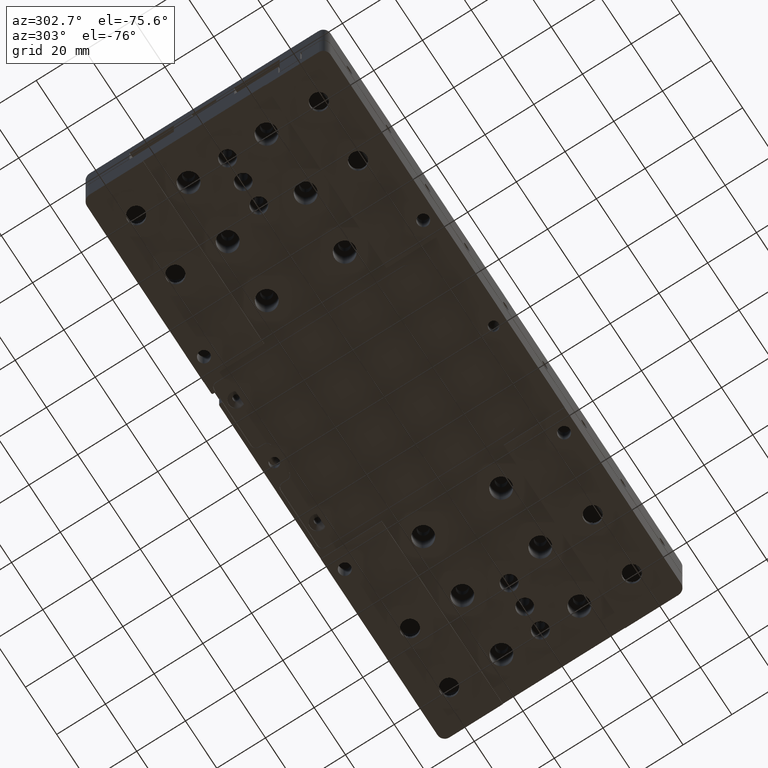
[diagram: clean part render]
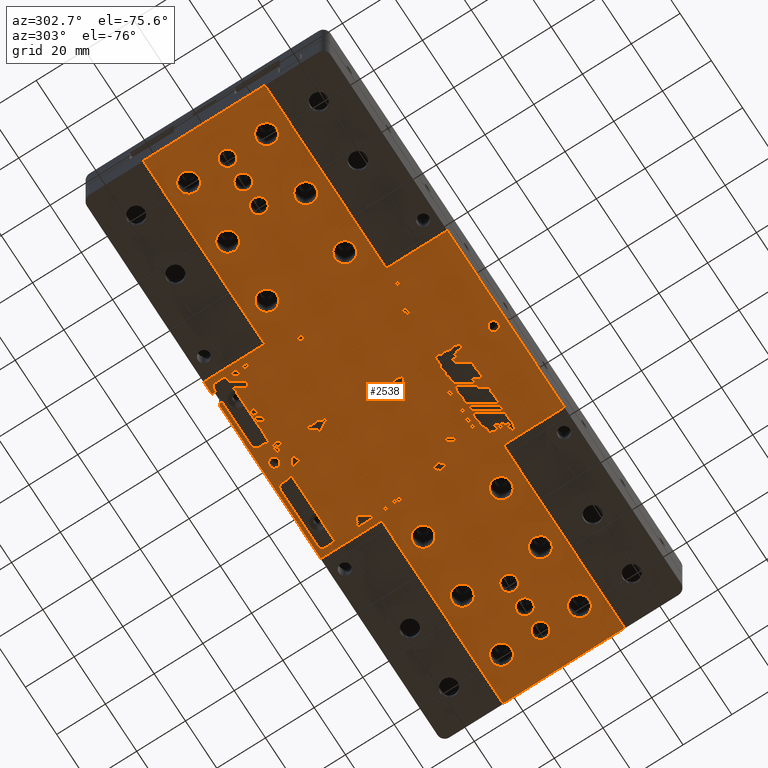
[diagram: same view with one face highlighted and labeled with its STEP entity id]
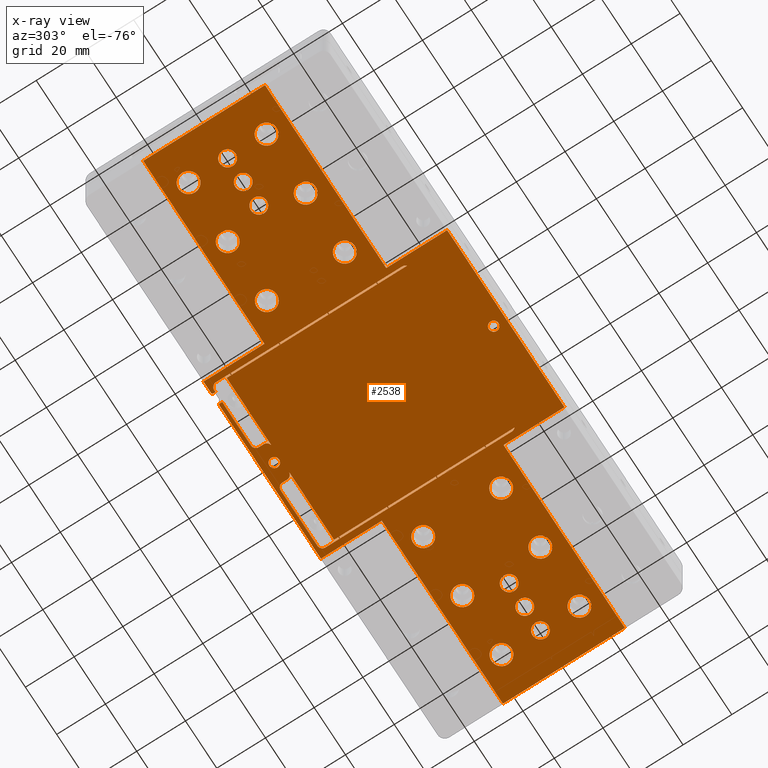
[diagram: x-ray of the same camera — body ghosted, the highlighted face saturated]
A machine part, auxiliary view. The second image highlights one B-rep face of the part: STEP entity #2538.
The next image is the same camera in x-ray: the body ghosted, the highlighted face saturated — about 0% of this face is hidden behind the body in this view.
In plain terms, the highlighted planar face has unit normal (0, 0, -1).
Its self-contained STEP definition (entity closure, byte-faithful):
#4 = VECTOR ( 'NONE', #17447, 1000.000000000000000 ) ;
#19 = CARTESIAN_POINT ( 'NONE',  ( -2.000000000000000000, 45.00000000000000000, -14.00000000000000000 ) ) ;
#97 = LINE ( 'NONE', #10640, #25484 ) ;
#121 = CIRCLE ( 'NONE', #20148, 2.000000000000001776 ) ;
#138 = CARTESIAN_POINT ( 'NONE',  ( -37.50000000000000000, 50.00000000000000711, -14.00000000000000000 ) ) ;
#163 = ORIENTED_EDGE ( 'NONE', *, *, #1460, .T. ) ;
#181 = CARTESIAN_POINT ( 'NONE',  ( -90.00000000000000000, 0.000000000000000000, -14.00000000000000000 ) ) ;
#197 = CARTESIAN_POINT ( 'NONE',  ( 96.75000000000000000, 0.000000000000000000, -14.00000000000000000 ) ) ;
#228 = EDGE_CURVE ( 'NONE', #459, #19366, #18252, .T. ) ;
#308 = ORIENTED_EDGE ( 'NONE', *, *, #10929, .T. ) ;
#316 = CARTESIAN_POINT ( 'NONE',  ( -35.00000000000000000, -30.00000000000000000, -13.99999999999999822 ) ) ;
#446 = VERTEX_POINT ( 'NONE', #11557 ) ;
#459 = VERTEX_POINT ( 'NONE', #27904 ) ;
#565 = ORIENTED_EDGE ( 'NONE', *, *, #19537, .T. ) ;
#623 = VECTOR ( 'NONE', #12119, 1000.000000000000000 ) ;
#636 = FACE_BOUND ( 'NONE', #24314, .T. ) ;
#652 = EDGE_CURVE ( 'NONE', #3553, #3553, #16965, .T. ) ;
#665 = VECTOR ( 'NONE', #9392, 1000.000000000000000 ) ;
#696 = EDGE_CURVE ( 'NONE', #2400, #23042, #12358, .T. ) ;
#704 = CARTESIAN_POINT ( 'NONE',  ( 34.29999999999999716, 42.54999999999999716, -14.00000000000000000 ) ) ;
#705 = CARTESIAN_POINT ( 'NONE',  ( 0.000000000000000000, -25.00000000000000000, -14.00000000000000000 ) ) ;
#786 = CARTESIAN_POINT ( 'NONE',  ( 7.500000000000000000, 44.54999999999999716, -14.00000000000000000 ) ) ;
#924 = DIRECTION ( 'NONE',  ( 1.000000000000000000, 0.000000000000000000, 0.000000000000000000 ) ) ;
#950 = VERTEX_POINT ( 'NONE', #5669 ) ;
#965 = LINE ( 'NONE', #705, #665 ) ;
#1033 = EDGE_LOOP ( 'NONE', ( #17482 ) ) ;
#1131 = EDGE_CURVE ( 'NONE', #20933, #20933, #23391, .T. ) ;
#1155 = LINE ( 'NONE', #3297, #11110 ) ;
#1165 = EDGE_CURVE ( 'NONE', #10092, #10092, #12913, .T. ) ;
#1223 = DIRECTION ( 'NONE',  ( -0.000000000000000000, -0.000000000000000000, 1.000000000000000000 ) ) ;
#1279 = AXIS2_PLACEMENT_3D ( 'NONE', #22738, #20605, #3374 ) ;
#1291 = AXIS2_PLACEMENT_3D ( 'NONE', #19457, #14759, #17333 ) ;
#1293 = EDGE_CURVE ( 'NONE', #27170, #27170, #21564, .T. ) ;
#1294 = EDGE_CURVE ( 'NONE', #13691, #26808, #18256, .T. ) ;
#1397 = DIRECTION ( 'NONE',  ( -0.000000000000000000, -0.000000000000000000, 1.000000000000000000 ) ) ;
#1460 = EDGE_CURVE ( 'NONE', #15662, #6875, #14818, .T. ) ;
#1501 = EDGE_CURVE ( 'NONE', #3064, #3792, #11247, .T. ) ;
#1604 = LINE ( 'NONE', #7735, #26492 ) ;
#1751 = EDGE_CURVE ( 'NONE', #26808, #6557, #965, .T. ) ;
#1764 = CARTESIAN_POINT ( 'NONE',  ( -54.12500000000000711, -16.00000000000000000, -14.00000000000000000 ) ) ;
#1898 = ORIENTED_EDGE ( 'NONE', *, *, #5238, .T. ) ;
#1972 = ORIENTED_EDGE ( 'NONE', *, *, #2041, .T. ) ;
#1973 = EDGE_CURVE ( 'NONE', #2963, #15662, #5692, .T. ) ;
#2041 = EDGE_CURVE ( 'NONE', #3211, #22769, #23900, .T. ) ;
#2145 = ORIENTED_EDGE ( 'NONE', *, *, #19735, .T. ) ;
#2283 = CIRCLE ( 'NONE', #18194, 2.000000000000000000 ) ;
#2368 = ORIENTED_EDGE ( 'NONE', *, *, #2672, .T. ) ;
#2400 = VERTEX_POINT ( 'NONE', #17174 ) ;
#2474 = ORIENTED_EDGE ( 'NONE', *, *, #2940, .T. ) ;
#2525 = VECTOR ( 'NONE', #12776, 1000.000000000000000 ) ;
#2538 = ADVANCED_FACE ( 'NONE', ( #20159, #636, #4789, #17751, #7341, #20021, #26422, #6923, #15603, #16013, #26691, #7203, #24296, #15876, #5065, #13739, #2929, #22570, #9872, #19001, #3619, #7611 ), #16291, .T. ) ;
#2634 = DIRECTION ( 'NONE',  ( -1.000000000000000000, 0.000000000000000000, 0.000000000000000000 ) ) ;
#2672 = EDGE_CURVE ( 'NONE', #8387, #8387, #3444, .T. ) ;
#2722 = VERTEX_POINT ( 'NONE', #19710 ) ;
#2780 = CARTESIAN_POINT ( 'NONE',  ( 115.0000000000000000, -25.00000000000000355, -14.00000000000000000 ) ) ;
#2899 = DIRECTION ( 'NONE',  ( -0.000000000000000000, -0.000000000000000000, 1.000000000000000000 ) ) ;
#2924 = ORIENTED_EDGE ( 'NONE', *, *, #26705, .T. ) ;
#2929 = FACE_BOUND ( 'NONE', #26838, .T. ) ;
#2940 = EDGE_CURVE ( 'NONE', #12792, #12792, #14370, .T. ) ;
#2963 = VERTEX_POINT ( 'NONE', #8374 ) ;
#2968 = AXIS2_PLACEMENT_3D ( 'NONE', #17143, #27806, #23833 ) ;
#2998 = ORIENTED_EDGE ( 'NONE', *, *, #1131, .T. ) ;
#3016 = CARTESIAN_POINT ( 'NONE',  ( -27.39999999999999858, 50.00000000000000000, -13.99999999999999822 ) ) ;
#3064 = VERTEX_POINT ( 'NONE', #23328 ) ;
#3127 = AXIS2_PLACEMENT_3D ( 'NONE', #14137, #18276, #11871 ) ;
#3179 = DIRECTION ( 'NONE',  ( 1.000000000000000000, -0.000000000000000000, 0.000000000000000000 ) ) ;
#3211 = VERTEX_POINT ( 'NONE', #6394 ) ;
#3297 = CARTESIAN_POINT ( 'NONE',  ( 0.000000000000000000, -25.00000000000000000, -14.00000000000000000 ) ) ;
#3328 = EDGE_LOOP ( 'NONE', ( #18190 ) ) ;
#3333 = DIRECTION ( 'NONE',  ( 0.000000000000000000, 0.000000000000000000, -1.000000000000000000 ) ) ;
#3374 = DIRECTION ( 'NONE',  ( -1.000000000000000000, 0.000000000000000000, 0.000000000000000000 ) ) ;
#3396 = VERTEX_POINT ( 'NONE', #14476 ) ;
#3405 = AXIS2_PLACEMENT_3D ( 'NONE', #13283, #15845, #11292 ) ;
#3444 = CIRCLE ( 'NONE', #20734, 4.125000000000003553 ) ;
#3458 = DIRECTION ( 'NONE',  ( -1.000000000000000000, 0.000000000000000000, -0.000000000000000000 ) ) ;
#3492 = EDGE_CURVE ( 'NONE', #14795, #14795, #5753, .T. ) ;
#3553 = VERTEX_POINT ( 'NONE', #18505 ) ;
#3556 = CARTESIAN_POINT ( 'NONE',  ( -37.50000000000000000, 25.00000000000000355, -14.00000000000000000 ) ) ;
#3592 = DIRECTION ( 'NONE',  ( -0.000000000000000000, -1.000000000000000000, -0.000000000000000000 ) ) ;
#3619 = FACE_BOUND ( 'NONE', #26111, .T. ) ;
#3670 = CARTESIAN_POINT ( 'NONE',  ( -5.500000000000000000, 42.54999999999999716, -14.00000000000000000 ) ) ;
#3784 = DIRECTION ( 'NONE',  ( -0.000000000000000000, -0.000000000000000000, 1.000000000000000000 ) ) ;
#3792 = VERTEX_POINT ( 'NONE', #4592 ) ;
#3840 = CARTESIAN_POINT ( 'NONE',  ( 45.87500000000000000, 16.00000000000000000, -14.00000000000000000 ) ) ;
#3878 = CARTESIAN_POINT ( 'NONE',  ( -9.500000000000000000, 46.50000000000000000, -14.00000000000000000 ) ) ;
#3966 = EDGE_LOOP ( 'NONE', ( #2474 ) ) ;
#4056 = CIRCLE ( 'NONE', #5417, 0.5000000000000004441 ) ;
#4190 = DIRECTION ( 'NONE',  ( 1.000000000000000000, -0.000000000000000000, 0.000000000000000000 ) ) ;
#4269 = EDGE_CURVE ( 'NONE', #21801, #15202, #26613, .T. ) ;
#4290 = AXIS2_PLACEMENT_3D ( 'NONE', #5302, #20396, #7171 ) ;
#4293 = CARTESIAN_POINT ( 'NONE',  ( 35.00000000000000000, 46.50000000000000000, -14.00000000000000000 ) ) ;
#4380 = CARTESIAN_POINT ( 'NONE',  ( -9.500000000000001776, 48.50000000000000000, -14.00000000000000000 ) ) ;
#4487 = CIRCLE ( 'NONE', #1291, 0.5000000000000004441 ) ;
#4495 = VECTOR ( 'NONE', #4930, 1000.000000000000000 ) ;
#4507 = CARTESIAN_POINT ( 'NONE',  ( 90.00000000000000000, 0.000000000000000000, -14.00000000000000000 ) ) ;
#4548 = EDGE_LOOP ( 'NONE', ( #8977 ) ) ;
#4592 = CARTESIAN_POINT ( 'NONE',  ( -34.29999999999999716, 42.54999999999999716, -14.00000000000000000 ) ) ;
#4735 = CARTESIAN_POINT ( 'NONE',  ( -32.10000000000000142, 48.50000000000000711, -14.00000000000000000 ) ) ;
#4760 = ORIENTED_EDGE ( 'NONE', *, *, #22012, .T. ) ;
#4789 = FACE_BOUND ( 'NONE', #1033, .T. ) ;
#4866 = ORIENTED_EDGE ( 'NONE', *, *, #7080, .T. ) ;
#4902 = VERTEX_POINT ( 'NONE', #786 ) ;
#4930 = DIRECTION ( 'NONE',  ( 0.000000000000000000, 1.000000000000000000, 0.000000000000000000 ) ) ;
#5046 = LINE ( 'NONE', #7186, #5094 ) ;
#5065 = FACE_BOUND ( 'NONE', #9568, .T. ) ;
#5094 = VECTOR ( 'NONE', #3179, 1000.000000000000000 ) ;
#5102 = VERTEX_POINT ( 'NONE', #13127 ) ;
#5144 = VERTEX_POINT ( 'NONE', #9540 ) ;
#5152 = CARTESIAN_POINT ( 'NONE',  ( 5.500000000000000000, 44.54999999999999716, -14.00000000000000000 ) ) ;
#5167 = VECTOR ( 'NONE', #20670, 1000.000000000000000 ) ;
#5238 = EDGE_CURVE ( 'NONE', #4902, #10686, #11839, .T. ) ;
#5302 = CARTESIAN_POINT ( 'NONE',  ( 75.00000000000000000, -16.00000000000000000, -14.00000000000000000 ) ) ;
#5325 = VECTOR ( 'NONE', #11393, 1000.000000000000000 ) ;
#5336 = VECTOR ( 'NONE', #9507, 1000.000000000000000 ) ;
#5357 = DIRECTION ( 'NONE',  ( 0.000000000000000000, 0.000000000000000000, 1.000000000000000000 ) ) ;
#5417 = AXIS2_PLACEMENT_3D ( 'NONE', #15221, #23910, #24337 ) ;
#5641 = ORIENTED_EDGE ( 'NONE', *, *, #21352, .T. ) ;
#5669 = CARTESIAN_POINT ( 'NONE',  ( -104.1250000000000142, 16.00000000000000000, -14.00000000000000000 ) ) ;
#5692 = CIRCLE ( 'NONE', #12047, 2.000000000000001776 ) ;
#5694 = DIRECTION ( 'NONE',  ( 0.000000000000000000, 1.000000000000000000, 0.000000000000000000 ) ) ;
#5753 = CIRCLE ( 'NONE', #9836, 2.000000000000000000 ) ;
#5856 = AXIS2_PLACEMENT_3D ( 'NONE', #4507, #15615, #26432 ) ;
#5898 = DIRECTION ( 'NONE',  ( -1.000000000000000000, 0.000000000000000000, -0.000000000000000000 ) ) ;
#5924 = CARTESIAN_POINT ( 'NONE',  ( -80.00000000000000000, 0.000000000000000000, -14.00000000000000000 ) ) ;
#5952 = ORIENTED_EDGE ( 'NONE', *, *, #25957, .T. ) ;
#5975 = CARTESIAN_POINT ( 'NONE',  ( 0.000000000000000000, 50.00000000000000000, -14.00000000000000000 ) ) ;
#6142 = DIRECTION ( 'NONE',  ( -0.000000000000000000, -1.000000000000000000, -0.000000000000000000 ) ) ;
#6237 = DIRECTION ( 'NONE',  ( -1.000000000000000000, -0.000000000000000000, -0.000000000000000000 ) ) ;
#6262 = DIRECTION ( 'NONE',  ( 1.000000000000000000, -0.000000000000000000, 0.000000000000000000 ) ) ;
#6288 = DIRECTION ( 'NONE',  ( -1.000000000000000000, 0.000000000000000000, 0.000000000000000000 ) ) ;
#6319 = ORIENTED_EDGE ( 'NONE', *, *, #8016, .T. ) ;
#6334 = ORIENTED_EDGE ( 'NONE', *, *, #18154, .T. ) ;
#6372 = EDGE_CURVE ( 'NONE', #14312, #14312, #17748, .T. ) ;
#6394 = CARTESIAN_POINT ( 'NONE',  ( -32.10000000000000142, 49.50000000000000000, -13.99999999999999822 ) ) ;
#6421 = EDGE_CURVE ( 'NONE', #13087, #11772, #2283, .T. ) ;
#6548 = CARTESIAN_POINT ( 'NONE',  ( -103.2500000000000142, 0.000000000000000000, -14.00000000000000000 ) ) ;
#6557 = VERTEX_POINT ( 'NONE', #24291 ) ;
#6774 = CARTESIAN_POINT ( 'NONE',  ( 7.500000000000000000, 46.50000000000000000, -14.00000000000000000 ) ) ;
#6777 = EDGE_CURVE ( 'NONE', #14729, #14729, #19113, .T. ) ;
#6784 = AXIS2_PLACEMENT_3D ( 'NONE', #3878, #26085, #8140 ) ;
#6875 = VERTEX_POINT ( 'NONE', #316 ) ;
#6923 = FACE_BOUND ( 'NONE', #26403, .T. ) ;
#6973 = VECTOR ( 'NONE', #21223, 1000.000000000000000 ) ;
#6984 = LINE ( 'NONE', #15241, #13745 ) ;
#7003 = LINE ( 'NONE', #9122, #25563 ) ;
#7029 = VECTOR ( 'NONE', #6142, 1000.000000000000000 ) ;
#7080 = EDGE_CURVE ( 'NONE', #22769, #2963, #97, .T. ) ;
#7148 = VERTEX_POINT ( 'NONE', #19189 ) ;
#7171 = DIRECTION ( 'NONE',  ( -1.000000000000000000, 0.000000000000000000, 0.000000000000000000 ) ) ;
#7186 = CARTESIAN_POINT ( 'NONE',  ( 0.000000000000000000, 25.00000000000000000, -14.00000000000000000 ) ) ;
#7191 = DIRECTION ( 'NONE',  ( -1.000000000000000000, 0.000000000000000000, 0.000000000000000000 ) ) ;
#7203 = FACE_BOUND ( 'NONE', #16828, .T. ) ;
#7286 = CARTESIAN_POINT ( 'NONE',  ( 70.87500000000000000, 16.00000000000000000, -14.00000000000000000 ) ) ;
#7341 = FACE_BOUND ( 'NONE', #3328, .T. ) ;
#7358 = CARTESIAN_POINT ( 'NONE',  ( -33.00000000000000000, -30.00000000000000000, -13.99999999999999822 ) ) ;
#7509 = ORIENTED_EDGE ( 'NONE', *, *, #6421, .T. ) ;
#7591 = CARTESIAN_POINT ( 'NONE',  ( 95.87500000000000000, -16.00000000000000000, -14.00000000000000000 ) ) ;
#7611 = FACE_OUTER_BOUND ( 'NONE', #10388, .T. ) ;
#7669 = DIRECTION ( 'NONE',  ( -1.000000000000000000, 0.000000000000000000, 0.000000000000000000 ) ) ;
#7730 = CARTESIAN_POINT ( 'NONE',  ( 37.50000000000000000, 0.000000000000000000, -14.00000000000000000 ) ) ;
#7735 = CARTESIAN_POINT ( 'NONE',  ( 37.50000000000000000, 0.000000000000000000, -14.00000000000000000 ) ) ;
#7796 = VERTEX_POINT ( 'NONE', #14486 ) ;
#7827 = DIRECTION ( 'NONE',  ( -1.000000000000000000, 0.000000000000000000, 0.000000000000000000 ) ) ;
#7857 = DIRECTION ( 'NONE',  ( -1.000000000000000000, 0.000000000000000000, -0.000000000000000000 ) ) ;
#7931 = DIRECTION ( 'NONE',  ( -1.000000000000000000, 0.000000000000000000, 0.000000000000000000 ) ) ;
#7988 = AXIS2_PLACEMENT_3D ( 'NONE', #27665, #3333, #5898 ) ;
#8016 = EDGE_CURVE ( 'NONE', #8102, #2722, #27338, .T. ) ;
#8101 = CIRCLE ( 'NONE', #11756, 2.000000000000001776 ) ;
#8102 = VERTEX_POINT ( 'NONE', #25078 ) ;
#8140 = DIRECTION ( 'NONE',  ( -1.000000000000000000, 0.000000000000000000, 0.000000000000000000 ) ) ;
#8318 = CARTESIAN_POINT ( 'NONE',  ( 0.000000000000000000, 45.00000000000000000, -14.00000000000000000 ) ) ;
#8325 = VERTEX_POINT ( 'NONE', #704 ) ;
#8374 = CARTESIAN_POINT ( 'NONE',  ( -33.00000000000000000, 48.50000000000000000, -14.00000000000000000 ) ) ;
#8387 = VERTEX_POINT ( 'NONE', #3840 ) ;
#8607 = CARTESIAN_POINT ( 'NONE',  ( 0.000000000000000000, 42.54999999999999716, -14.00000000000000000 ) ) ;
#8614 = DIRECTION ( 'NONE',  ( -1.000000000000000000, 0.000000000000000000, 0.000000000000000000 ) ) ;
#8799 = VECTOR ( 'NONE', #16777, 1000.000000000000000 ) ;
#8904 = CARTESIAN_POINT ( 'NONE',  ( 9.500000000000000000, 48.50000000000000000, -14.00000000000000000 ) ) ;
#8977 = ORIENTED_EDGE ( 'NONE', *, *, #11718, .T. ) ;
#8980 = CARTESIAN_POINT ( 'NONE',  ( -115.0000000000000000, 25.00000000000000355, -14.00000000000000000 ) ) ;
#9033 = CARTESIAN_POINT ( 'NONE',  ( -27.90000000000000213, 49.50000000000000000, -13.99999999999999822 ) ) ;
#9058 = EDGE_CURVE ( 'NONE', #9571, #7148, #13420, .T. ) ;
#9122 = CARTESIAN_POINT ( 'NONE',  ( 0.000000000000000000, 48.50000000000000000, -14.00000000000000000 ) ) ;
#9200 = EDGE_CURVE ( 'NONE', #17301, #17301, #10227, .T. ) ;
#9287 = AXIS2_PLACEMENT_3D ( 'NONE', #181, #27834, #19706 ) ;
#9300 = ORIENTED_EDGE ( 'NONE', *, *, #17021, .F. ) ;
#9354 = EDGE_CURVE ( 'NONE', #15078, #9397, #1155, .T. ) ;
#9368 = CARTESIAN_POINT ( 'NONE',  ( -75.00000000000000000, -16.00000000000000000, -14.00000000000000000 ) ) ;
#9392 = DIRECTION ( 'NONE',  ( -1.000000000000000000, 0.000000000000000000, -0.000000000000000000 ) ) ;
#9397 = VERTEX_POINT ( 'NONE', #12267 ) ;
#9409 = DIRECTION ( 'NONE',  ( -1.000000000000000000, 0.000000000000000000, 0.000000000000000000 ) ) ;
#9428 = CARTESIAN_POINT ( 'NONE',  ( -100.0000000000000000, 0.000000000000000000, -14.00000000000000000 ) ) ;
#9507 = DIRECTION ( 'NONE',  ( 0.000000000000000000, 1.000000000000000000, 0.000000000000000000 ) ) ;
#9540 = CARTESIAN_POINT ( 'NONE',  ( 45.87500000000000000, -16.00000000000000000, -14.00000000000000000 ) ) ;
#9549 = AXIS2_PLACEMENT_3D ( 'NONE', #5152, #11426, #26655 ) ;
#9568 = EDGE_LOOP ( 'NONE', ( #6334 ) ) ;
#9571 = VERTEX_POINT ( 'NONE', #4293 ) ;
#9583 = DIRECTION ( 'NONE',  ( -0.000000000000000000, -0.000000000000000000, 1.000000000000000000 ) ) ;
#9589 = VERTEX_POINT ( 'NONE', #8980 ) ;
#9694 = CIRCLE ( 'NONE', #26524, 4.125000000000003553 ) ;
#9806 = ORIENTED_EDGE ( 'NONE', *, *, #1294, .T. ) ;
#9836 = AXIS2_PLACEMENT_3D ( 'NONE', #25432, #1223, #7931 ) ;
#9872 = FACE_BOUND ( 'NONE', #14688, .T. ) ;
#10012 = CARTESIAN_POINT ( 'NONE',  ( 50.00000000000000000, 16.00000000000000000, -14.00000000000000000 ) ) ;
#10081 = CARTESIAN_POINT ( 'NONE',  ( 35.00000000000000000, 0.000000000000000000, -14.00000000000000000 ) ) ;
#10092 = VERTEX_POINT ( 'NONE', #23201 ) ;
#10227 = CIRCLE ( 'NONE', #3405, 3.250000000000002665 ) ;
#10270 = CARTESIAN_POINT ( 'NONE',  ( 100.0000000000000000, 16.00000000000000000, -14.00000000000000000 ) ) ;
#10348 = AXIS2_PLACEMENT_3D ( 'NONE', #8318, #23275, #27679 ) ;
#10388 = EDGE_LOOP ( 'NONE', ( #16998, #21392, #13116, #15086, #6319, #18126, #308, #24242, #9300, #17755, #5641, #4760, #9806, #12037, #15179, #23813, #15408, #12881, #14384, #24511, #19680, #22854, #15396, #1972, #4866, #20109, #163 ) ) ;
#10640 = CARTESIAN_POINT ( 'NONE',  ( -33.00000000000000000, 48.50000000000000000, -14.00000000000000000 ) ) ;
#10686 = VERTEX_POINT ( 'NONE', #24014 ) ;
#10909 = CARTESIAN_POINT ( 'NONE',  ( 35.00000000000000000, -30.00000000000000000, -13.99999999999999822 ) ) ;
#10929 = EDGE_CURVE ( 'NONE', #12533, #459, #7003, .T. ) ;
#10953 = LINE ( 'NONE', #18842, #11400 ) ;
#11110 = VECTOR ( 'NONE', #7857, 1000.000000000000000 ) ;
#11247 = LINE ( 'NONE', #15530, #14304 ) ;
#11254 = ORIENTED_EDGE ( 'NONE', *, *, #11933, .T. ) ;
#11259 = EDGE_LOOP ( 'NONE', ( #1898, #24427, #12152, #21775, #2145, #14580, #565, #7509, #22473 ) ) ;
#11292 = DIRECTION ( 'NONE',  ( -1.000000000000000000, 0.000000000000000000, 0.000000000000000000 ) ) ;
#11393 = DIRECTION ( 'NONE',  ( -0.000000000000000000, -1.000000000000000000, -0.000000000000000000 ) ) ;
#11400 = VECTOR ( 'NONE', #3458, 1000.000000000000000 ) ;
#11418 = CARTESIAN_POINT ( 'NONE',  ( -79.12500000000000000, -16.00000000000000000, -14.00000000000000000 ) ) ;
#11426 = DIRECTION ( 'NONE',  ( 0.000000000000000000, 0.000000000000000000, -1.000000000000000000 ) ) ;
#11462 = AXIS2_PLACEMENT_3D ( 'NONE', #18041, #18168, #12031 ) ;
#11502 = EDGE_CURVE ( 'NONE', #3211, #5102, #4487, .T. ) ;
#11557 = CARTESIAN_POINT ( 'NONE',  ( 95.87500000000000000, 16.00000000000000000, -14.00000000000000000 ) ) ;
#11576 = VECTOR ( 'NONE', #13972, 1000.000000000000000 ) ;
#11619 = EDGE_LOOP ( 'NONE', ( #15646 ) ) ;
#11695 = CARTESIAN_POINT ( 'NONE',  ( -50.00000000000000000, 16.00000000000000000, -14.00000000000000000 ) ) ;
#11718 = EDGE_CURVE ( 'NONE', #24956, #24956, #27671, .T. ) ;
#11756 = AXIS2_PLACEMENT_3D ( 'NONE', #7358, #5357, #924 ) ;
#11772 = VERTEX_POINT ( 'NONE', #6774 ) ;
#11839 = CIRCLE ( 'NONE', #9549, 2.000000000000000000 ) ;
#11871 = DIRECTION ( 'NONE',  ( -1.000000000000000000, 0.000000000000000000, 0.000000000000000000 ) ) ;
#11933 = EDGE_CURVE ( 'NONE', #18416, #18416, #16768, .T. ) ;
#12031 = DIRECTION ( 'NONE',  ( -1.000000000000000000, 0.000000000000000000, 0.000000000000000000 ) ) ;
#12037 = ORIENTED_EDGE ( 'NONE', *, *, #1751, .T. ) ;
#12047 = AXIS2_PLACEMENT_3D ( 'NONE', #15493, #26032, #13063 ) ;
#12119 = DIRECTION ( 'NONE',  ( 0.000000000000000000, 1.000000000000000000, 0.000000000000000000 ) ) ;
#12152 = ORIENTED_EDGE ( 'NONE', *, *, #15073, .T. ) ;
#12202 = CARTESIAN_POINT ( 'NONE',  ( 76.75000000000000000, 0.000000000000000000, -14.00000000000000000 ) ) ;
#12267 = CARTESIAN_POINT ( 'NONE',  ( -115.0000000000000000, -25.00000000000000355, -14.00000000000000000 ) ) ;
#12317 = CARTESIAN_POINT ( 'NONE',  ( -35.00000000000000000, 46.50000000000000000, -14.00000000000000000 ) ) ;
#12358 = LINE ( 'NONE', #27586, #8799 ) ;
#12428 = DIRECTION ( 'NONE',  ( -1.000000000000000000, 0.000000000000000000, 0.000000000000000000 ) ) ;
#12533 = VERTEX_POINT ( 'NONE', #4380 ) ;
#12776 = DIRECTION ( 'NONE',  ( -0.000000000000000000, -1.000000000000000000, 0.000000000000000000 ) ) ;
#12792 = VERTEX_POINT ( 'NONE', #6548 ) ;
#12814 = EDGE_CURVE ( 'NONE', #6875, #3064, #8101, .T. ) ;
#12881 = ORIENTED_EDGE ( 'NONE', *, *, #9354, .T. ) ;
#12913 = CIRCLE ( 'NONE', #21126, 4.125000000000003553 ) ;
#13063 = DIRECTION ( 'NONE',  ( -1.000000000000000000, 0.000000000000000000, 0.000000000000000000 ) ) ;
#13087 = VERTEX_POINT ( 'NONE', #8904 ) ;
#13116 = ORIENTED_EDGE ( 'NONE', *, *, #13961, .T. ) ;
#13127 = CARTESIAN_POINT ( 'NONE',  ( -32.60000000000000142, 50.00000000000000000, -13.99999999999999822 ) ) ;
#13187 = AXIS2_PLACEMENT_3D ( 'NONE', #5924, #3784, #16881 ) ;
#13210 = CARTESIAN_POINT ( 'NONE',  ( -32.10000000000000142, 40.00000000000000000, -14.00000000000000000 ) ) ;
#13239 = LINE ( 'NONE', #24217, #5325 ) ;
#13274 = VERTEX_POINT ( 'NONE', #20841 ) ;
#13283 = CARTESIAN_POINT ( 'NONE',  ( 100.0000000000000000, 0.000000000000000000, -14.00000000000000000 ) ) ;
#13420 = CIRCLE ( 'NONE', #2968, 2.000000000000001776 ) ;
#13598 = CIRCLE ( 'NONE', #6784, 2.000000000000000000 ) ;
#13642 = DIRECTION ( 'NONE',  ( -0.000000000000000000, -0.000000000000000000, 1.000000000000000000 ) ) ;
#13679 = DIRECTION ( 'NONE',  ( -1.000000000000000000, 0.000000000000000000, -0.000000000000000000 ) ) ;
#13691 = VERTEX_POINT ( 'NONE', #22653 ) ;
#13739 = FACE_BOUND ( 'NONE', #23711, .T. ) ;
#13745 = VECTOR ( 'NONE', #28181, 1000.000000000000000 ) ;
#13821 = DIRECTION ( 'NONE',  ( -0.000000000000000000, -0.000000000000000000, 1.000000000000000000 ) ) ;
#13961 = EDGE_CURVE ( 'NONE', #3792, #23546, #6984, .T. ) ;
#13972 = DIRECTION ( 'NONE',  ( -0.000000000000000000, -1.000000000000000000, -0.000000000000000000 ) ) ;
#14061 = EDGE_LOOP ( 'NONE', ( #27188 ) ) ;
#14137 = CARTESIAN_POINT ( 'NONE',  ( 100.0000000000000000, -16.00000000000000000, -14.00000000000000000 ) ) ;
#14238 = AXIS2_PLACEMENT_3D ( 'NONE', #16913, #1397, #7669 ) ;
#14262 = EDGE_CURVE ( 'NONE', #11772, #4902, #18772, .T. ) ;
#14304 = VECTOR ( 'NONE', #15251, 1000.000000000000000 ) ;
#14312 = VERTEX_POINT ( 'NONE', #27674 ) ;
#14325 = ORIENTED_EDGE ( 'NONE', *, *, #3492, .T. ) ;
#14351 = EDGE_LOOP ( 'NONE', ( #5952 ) ) ;
#14370 = CIRCLE ( 'NONE', #27093, 3.250000000000002665 ) ;
#14384 = ORIENTED_EDGE ( 'NONE', *, *, #17663, .T. ) ;
#14476 = CARTESIAN_POINT ( 'NONE',  ( 37.50000000000000000, 50.00000000000000711, -14.00000000000000000 ) ) ;
#14486 = CARTESIAN_POINT ( 'NONE',  ( -54.12500000000000711, 16.00000000000000000, -14.00000000000000000 ) ) ;
#14521 = CIRCLE ( 'NONE', #24541, 4.125000000000003553 ) ;
#14580 = ORIENTED_EDGE ( 'NONE', *, *, #9058, .T. ) ;
#14688 = EDGE_LOOP ( 'NONE', ( #23388 ) ) ;
#14729 = VERTEX_POINT ( 'NONE', #1764 ) ;
#14733 = DIRECTION ( 'NONE',  ( 0.000000000000000000, 1.000000000000000000, 0.000000000000000000 ) ) ;
#14759 = DIRECTION ( 'NONE',  ( -0.000000000000000000, -0.000000000000000000, 1.000000000000000000 ) ) ;
#14795 = VERTEX_POINT ( 'NONE', #23480 ) ;
#14818 = LINE ( 'NONE', #21240, #7029 ) ;
#14845 = DIRECTION ( 'NONE',  ( -0.000000000000000000, -0.000000000000000000, 1.000000000000000000 ) ) ;
#14918 = CIRCLE ( 'NONE', #1279, 4.125000000000003553 ) ;
#15006 = VECTOR ( 'NONE', #14733, 1000.000000000000000 ) ;
#15073 = EDGE_CURVE ( 'NONE', #8325, #15718, #13239, .T. ) ;
#15078 = VERTEX_POINT ( 'NONE', #24078 ) ;
#15086 = ORIENTED_EDGE ( 'NONE', *, *, #20801, .T. ) ;
#15179 = ORIENTED_EDGE ( 'NONE', *, *, #22679, .T. ) ;
#15202 = VERTEX_POINT ( 'NONE', #138 ) ;
#15221 = CARTESIAN_POINT ( 'NONE',  ( -27.40000000000000213, 49.50000000000000000, -13.99999999999999822 ) ) ;
#15241 = CARTESIAN_POINT ( 'NONE',  ( 0.000000000000000000, 42.54999999999999716, -14.00000000000000000 ) ) ;
#15251 = DIRECTION ( 'NONE',  ( 0.000000000000000000, 1.000000000000000000, 0.000000000000000000 ) ) ;
#15299 = CARTESIAN_POINT ( 'NONE',  ( 0.000000000000000000, 50.00000000000000000, -14.00000000000000000 ) ) ;
#15310 = DIRECTION ( 'NONE',  ( -0.000000000000000000, -0.000000000000000000, 1.000000000000000000 ) ) ;
#15396 = ORIENTED_EDGE ( 'NONE', *, *, #11502, .F. ) ;
#15408 = ORIENTED_EDGE ( 'NONE', *, *, #19083, .T. ) ;
#15493 = CARTESIAN_POINT ( 'NONE',  ( -33.00000000000000000, 46.50000000000000000, -14.00000000000000000 ) ) ;
#15530 = CARTESIAN_POINT ( 'NONE',  ( -34.29999999999999716, 0.000000000000000000, -14.00000000000000000 ) ) ;
#15603 = FACE_BOUND ( 'NONE', #14351, .T. ) ;
#15615 = DIRECTION ( 'NONE',  ( -0.000000000000000000, -0.000000000000000000, 1.000000000000000000 ) ) ;
#15646 = ORIENTED_EDGE ( 'NONE', *, *, #652, .T. ) ;
#15649 = EDGE_CURVE ( 'NONE', #21394, #21394, #26280, .T. ) ;
#15662 = VERTEX_POINT ( 'NONE', #12317 ) ;
#15718 = VERTEX_POINT ( 'NONE', #19293 ) ;
#15843 = CARTESIAN_POINT ( 'NONE',  ( 115.0000000000000000, 0.000000000000000000, -14.00000000000000000 ) ) ;
#15845 = DIRECTION ( 'NONE',  ( -0.000000000000000000, -0.000000000000000000, 1.000000000000000000 ) ) ;
#15876 = FACE_BOUND ( 'NONE', #3966, .T. ) ;
#16013 = FACE_BOUND ( 'NONE', #17611, .T. ) ;
#16291 = PLANE ( 'NONE',  #7988 ) ;
#16515 = EDGE_CURVE ( 'NONE', #446, #446, #21321, .T. ) ;
#16580 = DIRECTION ( 'NONE',  ( -1.000000000000000000, 0.000000000000000000, 0.000000000000000000 ) ) ;
#16768 = CIRCLE ( 'NONE', #3127, 4.125000000000003553 ) ;
#16777 = DIRECTION ( 'NONE',  ( -1.000000000000000000, 0.000000000000000000, -0.000000000000000000 ) ) ;
#16828 = EDGE_LOOP ( 'NONE', ( #21311 ) ) ;
#16834 = LINE ( 'NONE', #7730, #27389 ) ;
#16881 = DIRECTION ( 'NONE',  ( -1.000000000000000000, 0.000000000000000000, 0.000000000000000000 ) ) ;
#16913 = CARTESIAN_POINT ( 'NONE',  ( -75.00000000000000000, 16.00000000000000000, -14.00000000000000000 ) ) ;
#16940 = AXIS2_PLACEMENT_3D ( 'NONE', #11695, #13821, #9409 ) ;
#16965 = CIRCLE ( 'NONE', #14238, 4.125000000000003553 ) ;
#16998 = ORIENTED_EDGE ( 'NONE', *, *, #12814, .T. ) ;
#17021 = EDGE_CURVE ( 'NONE', #22944, #19366, #4056, .T. ) ;
#17143 = CARTESIAN_POINT ( 'NONE',  ( 33.00000000000000000, 46.50000000000000000, -14.00000000000000000 ) ) ;
#17169 = DIRECTION ( 'NONE',  ( -0.000000000000000000, -0.000000000000000000, 1.000000000000000000 ) ) ;
#17174 = CARTESIAN_POINT ( 'NONE',  ( 37.50000000000000000, -50.00000000000000711, -14.00000000000000000 ) ) ;
#17214 = EDGE_CURVE ( 'NONE', #26908, #26908, #14918, .T. ) ;
#17231 = EDGE_CURVE ( 'NONE', #24239, #24239, #20851, .T. ) ;
#17301 = VERTEX_POINT ( 'NONE', #197 ) ;
#17333 = DIRECTION ( 'NONE',  ( -1.000000000000000000, 0.000000000000000000, 0.000000000000000000 ) ) ;
#17447 = DIRECTION ( 'NONE',  ( 1.000000000000000000, -0.000000000000000000, 0.000000000000000000 ) ) ;
#17482 = ORIENTED_EDGE ( 'NONE', *, *, #26746, .T. ) ;
#17592 = LINE ( 'NONE', #8607, #4 ) ;
#17596 = CARTESIAN_POINT ( 'NONE',  ( 80.00000000000000000, 0.000000000000000000, -14.00000000000000000 ) ) ;
#17611 = EDGE_LOOP ( 'NONE', ( #2368 ) ) ;
#17663 = EDGE_CURVE ( 'NONE', #9397, #9589, #24440, .T. ) ;
#17748 = CIRCLE ( 'NONE', #13187, 3.250000000000002665 ) ;
#17751 = FACE_BOUND ( 'NONE', #11619, .T. ) ;
#17755 = ORIENTED_EDGE ( 'NONE', *, *, #21874, .T. ) ;
#17782 = EDGE_CURVE ( 'NONE', #2722, #12533, #13598, .T. ) ;
#18041 = CARTESIAN_POINT ( 'NONE',  ( -5.500000000000000000, 44.54999999999999716, -14.00000000000000000 ) ) ;
#18126 = ORIENTED_EDGE ( 'NONE', *, *, #17782, .T. ) ;
#18154 = EDGE_CURVE ( 'NONE', #5144, #5144, #14521, .T. ) ;
#18168 = DIRECTION ( 'NONE',  ( 0.000000000000000000, 0.000000000000000000, -1.000000000000000000 ) ) ;
#18190 = ORIENTED_EDGE ( 'NONE', *, *, #9200, .T. ) ;
#18194 = AXIS2_PLACEMENT_3D ( 'NONE', #23431, #17169, #8614 ) ;
#18213 = AXIS2_PLACEMENT_3D ( 'NONE', #27655, #14845, #12428 ) ;
#18247 = VECTOR ( 'NONE', #5694, 1000.000000000000000 ) ;
#18252 = LINE ( 'NONE', #26922, #5167 ) ;
#18256 = LINE ( 'NONE', #15843, #11576 ) ;
#18276 = DIRECTION ( 'NONE',  ( -0.000000000000000000, -0.000000000000000000, 1.000000000000000000 ) ) ;
#18416 = VERTEX_POINT ( 'NONE', #7591 ) ;
#18505 = CARTESIAN_POINT ( 'NONE',  ( -79.12500000000000000, 16.00000000000000000, -14.00000000000000000 ) ) ;
#18650 = CARTESIAN_POINT ( 'NONE',  ( 50.00000000000000000, -16.00000000000000000, -14.00000000000000000 ) ) ;
#18772 = LINE ( 'NONE', #21332, #25125 ) ;
#18842 = CARTESIAN_POINT ( 'NONE',  ( 0.000000000000000000, 48.50000000000000000, -14.00000000000000000 ) ) ;
#19001 = FACE_BOUND ( 'NONE', #25549, .T. ) ;
#19083 = EDGE_CURVE ( 'NONE', #23042, #15078, #27677, .T. ) ;
#19113 = CIRCLE ( 'NONE', #18213, 4.125000000000003553 ) ;
#19187 = DIRECTION ( 'NONE',  ( -0.000000000000000000, -1.000000000000000000, -0.000000000000000000 ) ) ;
#19189 = CARTESIAN_POINT ( 'NONE',  ( 33.00000000000000000, 48.50000000000000000, -14.00000000000000000 ) ) ;
#19232 = EDGE_CURVE ( 'NONE', #10686, #8325, #17592, .T. ) ;
#19283 = LINE ( 'NONE', #15299, #26557 ) ;
#19293 = CARTESIAN_POINT ( 'NONE',  ( 34.29999999999927240, -31.51986841535768491, -13.99999999999999822 ) ) ;
#19366 = VERTEX_POINT ( 'NONE', #9033 ) ;
#19454 = EDGE_LOOP ( 'NONE', ( #2998 ) ) ;
#19457 = CARTESIAN_POINT ( 'NONE',  ( -32.60000000000000142, 49.50000000000000000, -13.99999999999999822 ) ) ;
#19537 = EDGE_CURVE ( 'NONE', #7148, #13087, #10953, .T. ) ;
#19680 = ORIENTED_EDGE ( 'NONE', *, *, #4269, .T. ) ;
#19681 = DIRECTION ( 'NONE',  ( 1.000000000000000000, 0.000000000000000000, 0.000000000000000000 ) ) ;
#19706 = DIRECTION ( 'NONE',  ( -1.000000000000000000, 0.000000000000000000, 0.000000000000000000 ) ) ;
#19710 = CARTESIAN_POINT ( 'NONE',  ( -7.500000000000000000, 46.50000000000000000, -14.00000000000000000 ) ) ;
#19735 = EDGE_CURVE ( 'NONE', #20675, #9571, #21443, .T. ) ;
#20021 = FACE_BOUND ( 'NONE', #4548, .T. ) ;
#20109 = ORIENTED_EDGE ( 'NONE', *, *, #1973, .T. ) ;
#20148 = AXIS2_PLACEMENT_3D ( 'NONE', #23958, #26231, #19681 ) ;
#20159 = FACE_BOUND ( 'NONE', #11259, .T. ) ;
#20394 = CARTESIAN_POINT ( 'NONE',  ( -7.500000000000000000, 0.000000000000000000, -14.00000000000000000 ) ) ;
#20396 = DIRECTION ( 'NONE',  ( -0.000000000000000000, -0.000000000000000000, 1.000000000000000000 ) ) ;
#20551 = CARTESIAN_POINT ( 'NONE',  ( 86.75000000000000000, 0.000000000000000000, -14.00000000000000000 ) ) ;
#20605 = DIRECTION ( 'NONE',  ( -0.000000000000000000, -0.000000000000000000, 1.000000000000000000 ) ) ;
#20649 = CARTESIAN_POINT ( 'NONE',  ( -93.25000000000000000, 0.000000000000000000, -14.00000000000000000 ) ) ;
#20670 = DIRECTION ( 'NONE',  ( -0.000000000000000000, 1.000000000000000000, 0.000000000000000000 ) ) ;
#20675 = VERTEX_POINT ( 'NONE', #10909 ) ;
#20734 = AXIS2_PLACEMENT_3D ( 'NONE', #10012, #27377, #16580 ) ;
#20801 = EDGE_CURVE ( 'NONE', #23546, #8102, #21452, .T. ) ;
#20841 = CARTESIAN_POINT ( 'NONE',  ( 37.50000000000000000, 25.00000000000000355, -14.00000000000000000 ) ) ;
#20851 = CIRCLE ( 'NONE', #28113, 4.125000000000003553 ) ;
#20933 = VERTEX_POINT ( 'NONE', #20649 ) ;
#21126 = AXIS2_PLACEMENT_3D ( 'NONE', #24402, #23569, #24123 ) ;
#21223 = DIRECTION ( 'NONE',  ( 1.000000000000000000, -0.000000000000000000, 0.000000000000000000 ) ) ;
#21240 = CARTESIAN_POINT ( 'NONE',  ( -35.00000000000000000, 0.000000000000000000, -14.00000000000000000 ) ) ;
#21311 = ORIENTED_EDGE ( 'NONE', *, *, #6372, .T. ) ;
#21321 = CIRCLE ( 'NONE', #27663, 4.125000000000003553 ) ;
#21332 = CARTESIAN_POINT ( 'NONE',  ( 7.500000000000000000, 0.000000000000000000, -14.00000000000000000 ) ) ;
#21352 = EDGE_CURVE ( 'NONE', #3396, #13274, #16834, .T. ) ;
#21382 = DIRECTION ( 'NONE',  ( -0.000000000000000000, -0.000000000000000000, 1.000000000000000000 ) ) ;
#21392 = ORIENTED_EDGE ( 'NONE', *, *, #1501, .T. ) ;
#21394 = VERTEX_POINT ( 'NONE', #19 ) ;
#21427 = ORIENTED_EDGE ( 'NONE', *, *, #1165, .T. ) ;
#21437 = EDGE_CURVE ( 'NONE', #15718, #20675, #121, .T. ) ;
#21443 = LINE ( 'NONE', #10081, #18247 ) ;
#21452 = CIRCLE ( 'NONE', #11462, 2.000000000000000000 ) ;
#21564 = CIRCLE ( 'NONE', #4290, 4.125000000000003553 ) ;
#21775 = ORIENTED_EDGE ( 'NONE', *, *, #21437, .T. ) ;
#21801 = VERTEX_POINT ( 'NONE', #3556 ) ;
#21874 = EDGE_CURVE ( 'NONE', #22944, #3396, #25480, .T. ) ;
#21875 = ORIENTED_EDGE ( 'NONE', *, *, #1293, .T. ) ;
#22006 = EDGE_LOOP ( 'NONE', ( #21875 ) ) ;
#22012 = EDGE_CURVE ( 'NONE', #13274, #13691, #27749, .T. ) ;
#22473 = ORIENTED_EDGE ( 'NONE', *, *, #14262, .T. ) ;
#22570 = FACE_BOUND ( 'NONE', #14061, .T. ) ;
#22574 = EDGE_LOOP ( 'NONE', ( #2924 ) ) ;
#22653 = CARTESIAN_POINT ( 'NONE',  ( 115.0000000000000000, 25.00000000000000355, -14.00000000000000000 ) ) ;
#22679 = EDGE_CURVE ( 'NONE', #6557, #2400, #1604, .T. ) ;
#22685 = CARTESIAN_POINT ( 'NONE',  ( -100.0000000000000000, 16.00000000000000000, -14.00000000000000000 ) ) ;
#22738 = CARTESIAN_POINT ( 'NONE',  ( 75.00000000000000000, 16.00000000000000000, -14.00000000000000000 ) ) ;
#22769 = VERTEX_POINT ( 'NONE', #4735 ) ;
#22854 = ORIENTED_EDGE ( 'NONE', *, *, #24160, .T. ) ;
#22935 = ORIENTED_EDGE ( 'NONE', *, *, #15649, .T. ) ;
#22944 = VERTEX_POINT ( 'NONE', #3016 ) ;
#22999 = CARTESIAN_POINT ( 'NONE',  ( -37.50000000000000000, 0.000000000000000000, -14.00000000000000000 ) ) ;
#23042 = VERTEX_POINT ( 'NONE', #23492 ) ;
#23201 = CARTESIAN_POINT ( 'NONE',  ( -104.1250000000000142, -16.00000000000000000, -14.00000000000000000 ) ) ;
#23275 = DIRECTION ( 'NONE',  ( -0.000000000000000000, -0.000000000000000000, 1.000000000000000000 ) ) ;
#23298 = CIRCLE ( 'NONE', #16940, 4.125000000000003553 ) ;
#23328 = CARTESIAN_POINT ( 'NONE',  ( -34.29999999999999716, -31.51986841535853756, -13.99999999999999822 ) ) ;
#23388 = ORIENTED_EDGE ( 'NONE', *, *, #16515, .T. ) ;
#23391 = CIRCLE ( 'NONE', #9287, 3.250000000000002665 ) ;
#23431 = CARTESIAN_POINT ( 'NONE',  ( 9.500000000000000000, 46.50000000000000000, -14.00000000000000000 ) ) ;
#23480 = CARTESIAN_POINT ( 'NONE',  ( -2.000000000000000000, -45.00000000000000000, -14.00000000000000000 ) ) ;
#23492 = CARTESIAN_POINT ( 'NONE',  ( -37.50000000000000000, -50.00000000000000711, -14.00000000000000000 ) ) ;
#23546 = VERTEX_POINT ( 'NONE', #3670 ) ;
#23569 = DIRECTION ( 'NONE',  ( -0.000000000000000000, -0.000000000000000000, 1.000000000000000000 ) ) ;
#23711 = EDGE_LOOP ( 'NONE', ( #24965 ) ) ;
#23813 = ORIENTED_EDGE ( 'NONE', *, *, #696, .T. ) ;
#23833 = DIRECTION ( 'NONE',  ( -1.000000000000000000, 0.000000000000000000, 0.000000000000000000 ) ) ;
#23900 = LINE ( 'NONE', #13210, #2525 ) ;
#23910 = DIRECTION ( 'NONE',  ( 0.000000000000000000, 0.000000000000000000, 1.000000000000000000 ) ) ;
#23958 = CARTESIAN_POINT ( 'NONE',  ( 33.00000000000000000, -30.00000000000000000, -13.99999999999999822 ) ) ;
#24014 = CARTESIAN_POINT ( 'NONE',  ( 5.499999999999999112, 42.54999999999999716, -14.00000000000000000 ) ) ;
#24078 = CARTESIAN_POINT ( 'NONE',  ( -37.50000000000000000, -25.00000000000000355, -14.00000000000000000 ) ) ;
#24123 = DIRECTION ( 'NONE',  ( -1.000000000000000000, 0.000000000000000000, 0.000000000000000000 ) ) ;
#24129 = DIRECTION ( 'NONE',  ( -1.000000000000000000, 0.000000000000000000, 0.000000000000000000 ) ) ;
#24160 = EDGE_CURVE ( 'NONE', #15202, #5102, #19283, .T. ) ;
#24203 = CARTESIAN_POINT ( 'NONE',  ( -37.50000000000000000, 0.000000000000000000, -14.00000000000000000 ) ) ;
#24217 = CARTESIAN_POINT ( 'NONE',  ( 34.29999999999999716, 0.000000000000000000, -14.00000000000000000 ) ) ;
#24239 = VERTEX_POINT ( 'NONE', #11418 ) ;
#24242 = ORIENTED_EDGE ( 'NONE', *, *, #228, .T. ) ;
#24291 = CARTESIAN_POINT ( 'NONE',  ( 37.50000000000000000, -25.00000000000000355, -14.00000000000000000 ) ) ;
#24296 = FACE_BOUND ( 'NONE', #19454, .T. ) ;
#24314 = EDGE_LOOP ( 'NONE', ( #11254 ) ) ;
#24337 = DIRECTION ( 'NONE',  ( 1.000000000000000000, 0.000000000000000000, 0.000000000000000000 ) ) ;
#24402 = CARTESIAN_POINT ( 'NONE',  ( -100.0000000000000000, -16.00000000000000000, -14.00000000000000000 ) ) ;
#24427 = ORIENTED_EDGE ( 'NONE', *, *, #19232, .T. ) ;
#24440 = LINE ( 'NONE', #24952, #4495 ) ;
#24511 = ORIENTED_EDGE ( 'NONE', *, *, #25461, .T. ) ;
#24541 = AXIS2_PLACEMENT_3D ( 'NONE', #18650, #27318, #7827 ) ;
#24877 = DIRECTION ( 'NONE',  ( -1.000000000000000000, 0.000000000000000000, 0.000000000000000000 ) ) ;
#24952 = CARTESIAN_POINT ( 'NONE',  ( -115.0000000000000000, 0.000000000000000000, -14.00000000000000000 ) ) ;
#24956 = VERTEX_POINT ( 'NONE', #20551 ) ;
#24965 = ORIENTED_EDGE ( 'NONE', *, *, #17231, .T. ) ;
#25078 = CARTESIAN_POINT ( 'NONE',  ( -7.500000000000000000, 44.54999999999999716, -14.00000000000000000 ) ) ;
#25125 = VECTOR ( 'NONE', #19187, 1000.000000000000000 ) ;
#25134 = CIRCLE ( 'NONE', #26054, 3.250000000000002665 ) ;
#25311 = VERTEX_POINT ( 'NONE', #12202 ) ;
#25432 = CARTESIAN_POINT ( 'NONE',  ( 0.000000000000000000, -45.00000000000000000, -14.00000000000000000 ) ) ;
#25461 = EDGE_CURVE ( 'NONE', #9589, #21801, #5046, .T. ) ;
#25480 = LINE ( 'NONE', #5975, #6973 ) ;
#25484 = VECTOR ( 'NONE', #6237, 1000.000000000000000 ) ;
#25549 = EDGE_LOOP ( 'NONE', ( #22935 ) ) ;
#25563 = VECTOR ( 'NONE', #13679, 1000.000000000000000 ) ;
#25572 = ORIENTED_EDGE ( 'NONE', *, *, #6777, .T. ) ;
#25907 = CARTESIAN_POINT ( 'NONE',  ( 0.000000000000000000, 25.00000000000000000, -14.00000000000000000 ) ) ;
#25957 = EDGE_CURVE ( 'NONE', #7796, #7796, #23298, .T. ) ;
#26032 = DIRECTION ( 'NONE',  ( -0.000000000000000000, -0.000000000000000000, 1.000000000000000000 ) ) ;
#26054 = AXIS2_PLACEMENT_3D ( 'NONE', #17596, #15310, #2634 ) ;
#26085 = DIRECTION ( 'NONE',  ( -0.000000000000000000, -0.000000000000000000, 1.000000000000000000 ) ) ;
#26111 = EDGE_LOOP ( 'NONE', ( #14325 ) ) ;
#26231 = DIRECTION ( 'NONE',  ( 0.000000000000000000, 0.000000000000000000, 1.000000000000000000 ) ) ;
#26280 = CIRCLE ( 'NONE', #10348, 2.000000000000000000 ) ;
#26403 = EDGE_LOOP ( 'NONE', ( #25572 ) ) ;
#26422 = FACE_BOUND ( 'NONE', #22006, .T. ) ;
#26432 = DIRECTION ( 'NONE',  ( -1.000000000000000000, 0.000000000000000000, 0.000000000000000000 ) ) ;
#26492 = VECTOR ( 'NONE', #27792, 1000.000000000000000 ) ;
#26521 = VECTOR ( 'NONE', #6262, 1000.000000000000000 ) ;
#26524 = AXIS2_PLACEMENT_3D ( 'NONE', #22685, #9583, #7191 ) ;
#26557 = VECTOR ( 'NONE', #4190, 1000.000000000000000 ) ;
#26613 = LINE ( 'NONE', #24203, #5336 ) ;
#26655 = DIRECTION ( 'NONE',  ( -1.000000000000000000, 0.000000000000000000, 0.000000000000000000 ) ) ;
#26691 = FACE_BOUND ( 'NONE', #22574, .T. ) ;
#26705 = EDGE_CURVE ( 'NONE', #25311, #25311, #25134, .T. ) ;
#26746 = EDGE_CURVE ( 'NONE', #950, #950, #9694, .T. ) ;
#26808 = VERTEX_POINT ( 'NONE', #2780 ) ;
#26838 = EDGE_LOOP ( 'NONE', ( #21427 ) ) ;
#26908 = VERTEX_POINT ( 'NONE', #7286 ) ;
#26922 = CARTESIAN_POINT ( 'NONE',  ( -27.89999999999999858, 40.00000000000000000, -14.00000000000000000 ) ) ;
#27038 = CARTESIAN_POINT ( 'NONE',  ( 70.87500000000000000, -16.00000000000000000, -14.00000000000000000 ) ) ;
#27093 = AXIS2_PLACEMENT_3D ( 'NONE', #9428, #2899, #24129 ) ;
#27170 = VERTEX_POINT ( 'NONE', #27038 ) ;
#27188 = ORIENTED_EDGE ( 'NONE', *, *, #17214, .T. ) ;
#27318 = DIRECTION ( 'NONE',  ( -0.000000000000000000, -0.000000000000000000, 1.000000000000000000 ) ) ;
#27338 = LINE ( 'NONE', #20394, #623 ) ;
#27377 = DIRECTION ( 'NONE',  ( -0.000000000000000000, -0.000000000000000000, 1.000000000000000000 ) ) ;
#27389 = VECTOR ( 'NONE', #3592, 1000.000000000000000 ) ;
#27586 = CARTESIAN_POINT ( 'NONE',  ( 0.000000000000000000, -50.00000000000000000, -14.00000000000000000 ) ) ;
#27655 = CARTESIAN_POINT ( 'NONE',  ( -50.00000000000000000, -16.00000000000000000, -14.00000000000000000 ) ) ;
#27663 = AXIS2_PLACEMENT_3D ( 'NONE', #10270, #21382, #6288 ) ;
#27665 = CARTESIAN_POINT ( 'NONE',  ( 0.000000000000000000, 0.000000000000000000, -14.00000000000000000 ) ) ;
#27671 = CIRCLE ( 'NONE', #5856, 3.250000000000002665 ) ;
#27674 = CARTESIAN_POINT ( 'NONE',  ( -83.25000000000000000, 0.000000000000000000, -14.00000000000000000 ) ) ;
#27677 = LINE ( 'NONE', #22999, #15006 ) ;
#27679 = DIRECTION ( 'NONE',  ( -1.000000000000000000, 0.000000000000000000, 0.000000000000000000 ) ) ;
#27749 = LINE ( 'NONE', #25907, #26521 ) ;
#27792 = DIRECTION ( 'NONE',  ( -0.000000000000000000, -1.000000000000000000, -0.000000000000000000 ) ) ;
#27806 = DIRECTION ( 'NONE',  ( -0.000000000000000000, -0.000000000000000000, 1.000000000000000000 ) ) ;
#27834 = DIRECTION ( 'NONE',  ( -0.000000000000000000, -0.000000000000000000, 1.000000000000000000 ) ) ;
#27904 = CARTESIAN_POINT ( 'NONE',  ( -27.89999999999999858, 48.50000000000000711, -14.00000000000000000 ) ) ;
#28113 = AXIS2_PLACEMENT_3D ( 'NONE', #9368, #13642, #24877 ) ;
#28181 = DIRECTION ( 'NONE',  ( 1.000000000000000000, -0.000000000000000000, 0.000000000000000000 ) ) ;